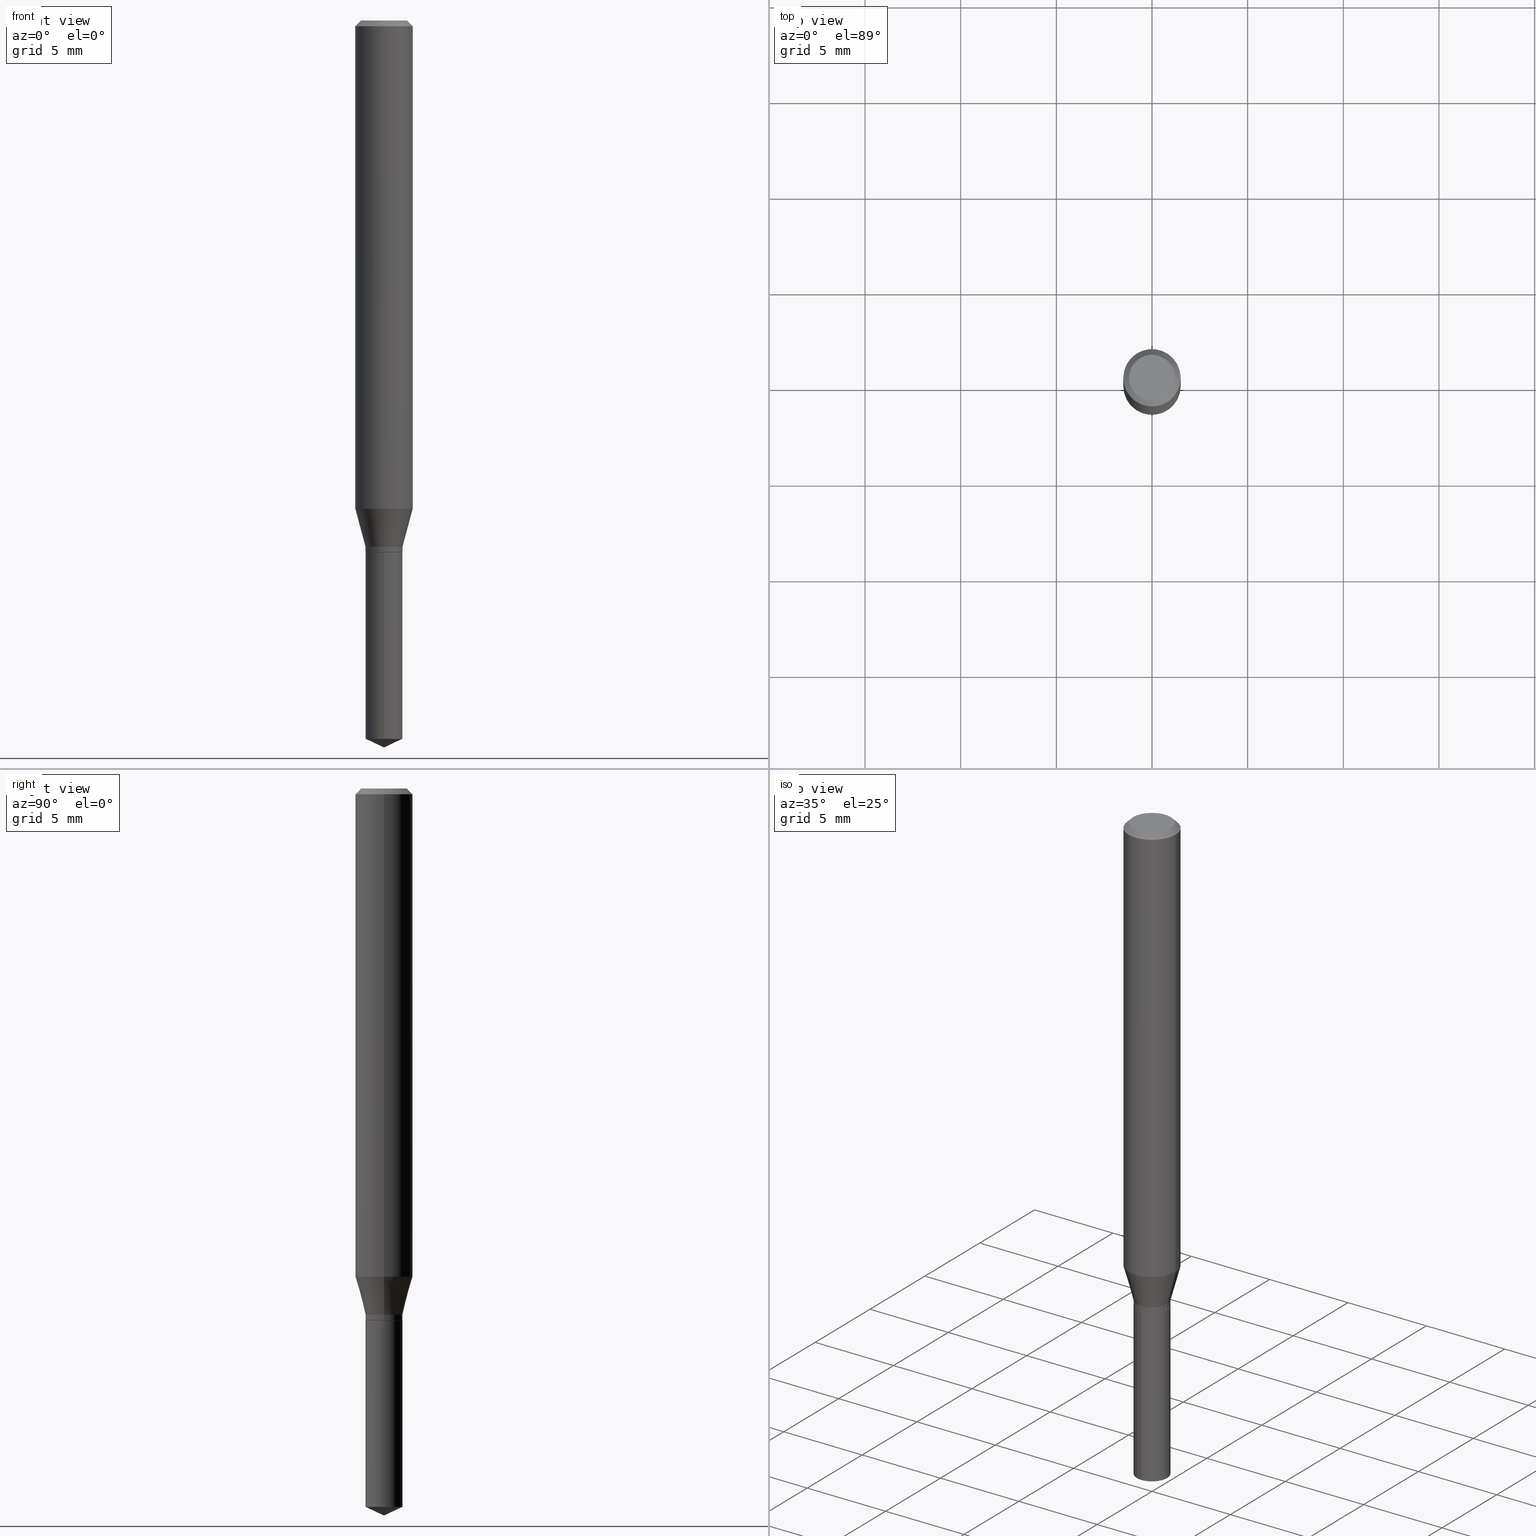
[diagram: canonical four-view strip — front | top / right | iso, engineering-drawing reading convention]
A machine part, canonical four-view strip (front | top / right | iso — engineering-drawing reading convention). The complete STEP part file that produces these views, byte-faithful:
ISO-10303-21;
HEADER;
FILE_DESCRIPTION (( 'STEP AP203' ),
    '1' );
FILE_NAME ('07592.STEP',
    '2024-04-23T23:26:49',
    ( '' ),
    ( '' ),
    'SwSTEP 2.0',
    'SolidWorks 2023',
    '' );
FILE_SCHEMA (( 'CONFIG_CONTROL_DESIGN' ));
ENDSEC;

DATA;
#1 = CARTESIAN_POINT ( 'NONE',  ( 0.03799999999999999906, -4.085033166446479279E-15, -1.093999999999999861 ) ) ;
#2 = VERTEX_POINT ( 'NONE', #51 ) ;
#3 = CARTESIAN_POINT ( 'NONE',  ( 2.676565608369632355E-29, -3.821426325363822773E-15, -1.094500000000000028 ) ) ;
#4 = FACE_OUTER_BOUND ( 'NONE', #395, .T. ) ;
#5 = ORIENTED_EDGE ( 'NONE', *, *, #91, .T. ) ;
#6 = VECTOR ( 'NONE', #107, 39.37007874015748143 ) ;
#7 = VECTOR ( 'NONE', #154, 39.37007874015748143 ) ;
#8 = CC_DESIGN_DATE_AND_TIME_ASSIGNMENT ( #370, #25, ( #190 ) ) ;
#9 = CARTESIAN_POINT ( 'NONE',  ( 8.265746106709734507E-48, -1.180129479067563789E-33, -3.380025165646692144E-19 ) ) ;
#10 = CYLINDRICAL_SURFACE ( 'NONE', #301, 0.03799999999999999906 ) ;
#11 = CARTESIAN_POINT ( 'NONE',  ( 2.675342873966538993E-29, -3.819680584694400481E-15, -1.093999999999999861 ) ) ;
#12 = EDGE_LOOP ( 'NONE', ( #243, #281, #435, #350 ) ) ;
#13 = AXIS2_PLACEMENT_3D ( 'NONE', #229, #138, #28 ) ;
#14 = CONICAL_SURFACE ( 'NONE', #144, 0.05904999999999999832, 0.7853981633974452814 ) ;
#15 = DIRECTION ( 'NONE',  ( -2.445458899330790108E-29, 3.491495526022433205E-15, 1.000000000000000000 ) ) ;
#16 = ORIENTED_EDGE ( 'NONE', *, *, #404, .T. ) ;
#17 = CYLINDRICAL_SURFACE ( 'NONE', #250, 0.03799999999999999906 ) ;
#18 = CARTESIAN_POINT ( 'NONE',  ( -9.261924752013118283E-28, 1.322368428517963298E-13, 37.87397874015748300 ) ) ;
#19 = CARTESIAN_POINT ( 'NONE',  ( 0.05905000000000011628, -3.919677764175807032E-15, -1.004540330500674816 ) ) ;
#20 = EDGE_LOOP ( 'NONE', ( #122, #153 ) ) ;
#21 = CIRCLE ( 'NONE', #398, 0.03799999999999999906 ) ;
#22 = EDGE_LOOP ( 'NONE', ( #470, #289, #172, #87 ) ) ;
#23 = COORDINATED_UNIVERSAL_TIME_OFFSET ( 5, 0, .BEHIND. ) ;
#24 = CARTESIAN_POINT ( 'NONE',  ( 2.888098660104663766E-31, -4.123439461173779647E-17, -0.01181000000000007044 ) ) ;
#25 = DATE_TIME_ROLE ( 'classification_date' ) ;
#26 = DIRECTION ( 'NONE',  ( -1.000000000000000000, 6.982962677686265922E-15, -4.876176775795935793E-29 ) ) ;
#27 = CALENDAR_DATE ( 2024, 23, 4 ) ;
#28 = DIRECTION ( 'NONE',  ( 1.000000000000000000, -6.982962677686266711E-15, 4.876185090822587894E-29 ) ) ;
#29 = CC_DESIGN_PERSON_AND_ORGANIZATION_ASSIGNMENT ( #481, #58, ( #480 ) ) ;
#30 = CARTESIAN_POINT ( 'NONE',  ( -0.05905000000000011628, -3.087758332592092225E-15, -1.004540330500674816 ) ) ;
#31 = FACE_OUTER_BOUND ( 'NONE', #22, .T. ) ;
#32 = DIRECTION ( 'NONE',  ( -2.445468806185136877E-29, 3.491481338843145188E-15, 1.000000000000000000 ) ) ;
#33 = CIRCLE ( 'NONE', #72, 0.03799999999999999906 ) ;
#34 = CIRCLE ( 'NONE', #459, 0.03799999999999999906 ) ;
#35 = DIRECTION ( 'NONE',  ( -2.445468806185136597E-29, 3.491481338843145583E-15, 1.000000000000000000 ) ) ;
#36 = CARTESIAN_POINT ( 'NONE',  ( 2.676565608369632355E-29, -3.821426325363822773E-15, -1.094500000000000028 ) ) ;
#37 = ADVANCED_FACE ( 'NONE', ( #211 ), #290, .T. ) ;
#38 = ORIENTED_EDGE ( 'NONE', *, *, #174, .F. ) ;
#39 = CARTESIAN_POINT ( 'NONE',  ( 2.700062395888742036E-16, 0.03799999999999617573, -1.094500000000000028 ) ) ;
#40 = EDGE_LOOP ( 'NONE', ( #252, #202, #423 ) ) ;
#41 = VECTOR ( 'NONE', #286, 39.37007874015748143 ) ;
#42 = FACE_OUTER_BOUND ( 'NONE', #245, .T. ) ;
#43 = ORIENTED_EDGE ( 'NONE', *, *, #447, .F. ) ;
#44 = LINE ( 'NONE', #203, #483 ) ;
#45 = ORIENTED_EDGE ( 'NONE', *, *, #311, .T. ) ;
#46 = CARTESIAN_POINT ( 'NONE',  ( 2.676565608369631794E-29, -3.821426325363822773E-15, -1.094499999999999806 ) ) ;
#47 = ORIENTED_EDGE ( 'NONE', *, *, #224, .F. ) ;
#48 = CIRCLE ( 'NONE', #264, 0.03799999999999999906 ) ;
#49 = CIRCLE ( 'NONE', #351, 0.03749999999999999167 ) ;
#50 = FACE_OUTER_BOUND ( 'NONE', #356, .T. ) ;
#51 = CARTESIAN_POINT ( 'NONE',  ( -0.03799999999999999906, -3.530645771808868176E-15, -1.093999999999999861 ) ) ;
#52 = LENGTH_MEASURE_WITH_UNIT ( LENGTH_MEASURE( 0.02539999999999999897 ), #90 );
#53 = EDGE_CURVE ( 'NONE', #391, #457, #178, .T. ) ;
#54 = VERTEX_POINT ( 'NONE', #177 ) ;
#55 = ORIENTED_EDGE ( 'NONE', *, *, #74, .T. ) ;
#56 = CIRCLE ( 'NONE', #13, 0.04724000000000000421 ) ;
#57 = AXIS2_PLACEMENT_3D ( 'NONE', #280, #345, #239 ) ;
#58 = PERSON_AND_ORGANIZATION_ROLE ( 'creator' ) ;
#59 = LOCAL_TIME ( 19, 26, 49.00000000000000000, #339 ) ;
#60 = CARTESIAN_POINT ( 'NONE',  ( 2.648687263979121750E-29, -3.781623438101010914E-15, -1.083099999999999952 ) ) ;
#61 = ADVANCED_FACE ( 'NONE', ( #104 ), #308, .T. ) ;
#62 = CARTESIAN_POINT ( 'NONE',  ( 4.132873053354867254E-48, -5.900647395337818946E-34, -1.690012582823346072E-19 ) ) ;
#63 = ADVANCED_FACE ( 'NONE', ( #31 ), #473, .T. ) ;
#64 = DIRECTION ( 'NONE',  ( 1.000000000000000000, -6.982962677686265922E-15, 4.876176775795935793E-29 ) ) ;
#65 = CIRCLE ( 'NONE', #316, 0.03799999999999999906 ) ;
#66 = CARTESIAN_POINT ( 'NONE',  ( -0.05905000000000006077, 4.195754854663395916E-16, -2.904631170795524694E-30 ) ) ;
#67 = CARTESIAN_POINT ( 'NONE',  ( 0.000000000000000000, 0.000000000000000000, 0.000000000000000000 ) ) ;
#68 = CARTESIAN_POINT ( 'NONE',  ( 3.615329126267350293E-29, -5.161742706730900890E-15, -1.478380308990109970 ) ) ;
#69 = EDGE_CURVE ( 'NONE', #92, #425, #449, .T. ) ;
#70 = CARTESIAN_POINT ( 'NONE',  ( 2.888098660104663766E-31, -4.123439461173779647E-17, -0.01181000000000007044 ) ) ;
#71 = CYLINDRICAL_SURFACE ( 'NONE', #331, 0.05905000000000006077 ) ;
#72 = AXIS2_PLACEMENT_3D ( 'NONE', #60, #218, #369 ) ;
#73 = VECTOR ( 'NONE', #364, 39.37007874015748143 ) ;
#74 = EDGE_CURVE ( 'NONE', #291, #194, #140, .T. ) ;
#75 = DIRECTION ( 'NONE',  ( 1.000000000000000000, -6.982962677686269077E-15, 0.000000000000000000 ) ) ;
#76 = ORIENTED_EDGE ( 'NONE', *, *, #485, .F. ) ;
#77 = CARTESIAN_POINT ( 'NONE',  ( -0.03749999999999999167, -3.552323572279673766E-15, -1.094500000000000028 ) ) ;
#78 = EDGE_CURVE ( 'NONE', #439, #80, #56, .T. ) ;
#79 = FACE_OUTER_BOUND ( 'NONE', #12, .T. ) ;
#80 = VERTEX_POINT ( 'NONE', #411 ) ;
#81 = CIRCLE ( 'NONE', #292, 0.05905000000000011628 ) ;
#82 = CC_DESIGN_APPROVAL ( #415, ( #190 ) ) ;
#83 = DIRECTION ( 'NONE',  ( -2.445468806185136597E-29, 3.491481338843145583E-15, 1.000000000000000000 ) ) ;
#84 = FACE_OUTER_BOUND ( 'NONE', #478, .T. ) ;
#85 = ORIENTED_EDGE ( 'NONE', *, *, #74, .F. ) ;
#86 = LINE ( 'NONE', #93, #453 ) ;
#87 = ORIENTED_EDGE ( 'NONE', *, *, #384, .F. ) ;
#88 = APPROVAL_PERSON_ORGANIZATION ( #226, #183, #133 ) ;
#89 = EDGE_CURVE ( 'NONE', #457, #391, #65, .T. ) ;
#90 =( LENGTH_UNIT ( ) NAMED_UNIT ( * ) SI_UNIT ( $, .METRE. ) );
#91 = EDGE_CURVE ( 'NONE', #439, #425, #337, .T. ) ;
#92 = VERTEX_POINT ( 'NONE', #30 ) ;
#93 = CARTESIAN_POINT ( 'NONE',  ( 0.05905000000000006077, -4.123439461173744764E-16, 2.879382386107503023E-30 ) ) ;
#94 = ORIENTED_EDGE ( 'NONE', *, *, #188, .T. ) ;
#95 = PERSON_AND_ORGANIZATION ( #230, #106 ) ;
#96 = VERTEX_POINT ( 'NONE', #413 ) ;
#97 = EDGE_CURVE ( 'NONE', #54, #291, #299, .T. ) ;
#98 = AXIS2_PLACEMENT_3D ( 'NONE', #67, #336, #298 ) ;
#99 = PERSON_AND_ORGANIZATION ( #230, #106 ) ;
#100 = CARTESIAN_POINT ( 'NONE',  ( 2.648687263979121750E-29, -3.781623438101010914E-15, -1.083099999999999952 ) ) ;
#101 = APPLICATION_PROTOCOL_DEFINITION ( 'international standard', 'config_control_design', 1994, #269 ) ;
#102 = DIRECTION ( 'NONE',  ( -2.445458899330790108E-29, 3.491495526022433205E-15, 1.000000000000000000 ) ) ;
#103 = SHAPE_DEFINITION_REPRESENTATION ( #173, #422 ) ;
#104 = FACE_OUTER_BOUND ( 'NONE', #168, .T. ) ;
#105 = PERSON_AND_ORGANIZATION_ROLE ( 'creator' ) ;
#106 = ORGANIZATION ( 'UNSPECIFIED', 'UNSPECIFIED', '' ) ;
#107 = DIRECTION ( 'NONE',  ( -2.445468806185136877E-29, 3.491481338843145188E-15, 1.000000000000000000 ) ) ;
#108 = CC_DESIGN_PERSON_AND_ORGANIZATION_ASSIGNMENT ( #450, #261, ( #480 ) ) ;
#109 = DIRECTION ( 'NONE',  ( -2.445468806185136597E-29, 3.491481338843145583E-15, 1.000000000000000000 ) ) ;
#110 = CARTESIAN_POINT ( 'NONE',  ( 2.676565608369632355E-29, -3.821426325363822773E-15, -1.094500000000000028 ) ) ;
#111 = ORIENTED_EDGE ( 'NONE', *, *, #78, .F. ) ;
#112 = EDGE_CURVE ( 'NONE', #276, #391, #372, .T. ) ;
#113 = LINE ( 'NONE', #456, #7 ) ;
#114 = CONICAL_SURFACE ( 'NONE', #407, 84.42940631927405093, 1.134464013796314674 ) ;
#115 = DIRECTION ( 'NONE',  ( 1.000000000000000000, -6.982962677686266711E-15, 0.000000000000000000 ) ) ;
#116 = MANIFOLD_SOLID_BREP ( 'Body-Move/Copy2[1]', #160 ) ;
#117 = DIRECTION ( 'NONE',  ( -2.445468806185136597E-29, 3.491481338843145583E-15, 1.000000000000000000 ) ) ;
#118 = ORIENTED_EDGE ( 'NONE', *, *, #89, .T. ) ;
#119 = DIRECTION ( 'NONE',  ( -1.000000000000000000, 6.982962677686266711E-15, 0.000000000000000000 ) ) ;
#120 = CONICAL_SURFACE ( 'NONE', #240, 0.03799999999999999906, 0.2617993877991499629 ) ;
#121 = CARTESIAN_POINT ( 'NONE',  ( 2.888098660104663766E-31, -4.123439461173779647E-17, -0.01181000000000007044 ) ) ;
#122 = ORIENTED_EDGE ( 'NONE', *, *, #399, .T. ) ;
#123 = CARTESIAN_POINT ( 'NONE',  ( 0.000000000000000000, 0.000000000000000000, 0.000000000000000000 ) ) ;
#124 = ORIENTED_EDGE ( 'NONE', *, *, #367, .T. ) ;
#125 = ADVANCED_FACE ( 'NONE', ( #484 ), #335, .F. ) ;
#126 = DIRECTION ( 'NONE',  ( -2.445468806185136597E-29, 3.491481338843145583E-15, 1.000000000000000000 ) ) ;
#127 = ORIENTED_EDGE ( 'NONE', *, *, #97, .F. ) ;
#128 = AXIS2_PLACEMENT_3D ( 'NONE', #306, #374, #227 ) ;
#129 = CIRCLE ( 'NONE', #225, 0.04724000000000000421 ) ;
#130 =( NAMED_UNIT ( * ) PLANE_ANGLE_UNIT ( ) SI_UNIT ( $, .RADIAN. ) );
#131 = ORIENTED_EDGE ( 'NONE', *, *, #205, .T. ) ;
#132 = ORIENTED_EDGE ( 'NONE', *, *, #404, .F. ) ;
#133 = APPROVAL_ROLE ( '' ) ;
#134 = DIRECTION ( 'NONE',  ( 1.000000000000000000, -6.982962677686269077E-15, 0.000000000000000000 ) ) ;
#135 = PRODUCT_DEFINITION ( 'UNKNOWN', '', #480, #371 ) ;
#136 = CIRCLE ( 'NONE', #274, 0.03799999999999999906 ) ;
#137 = APPROVAL_ROLE ( '' ) ;
#138 = DIRECTION ( 'NONE',  ( -2.445468806185136597E-29, 3.491481338843145583E-15, 1.000000000000000000 ) ) ;
#139 = DATE_AND_TIME ( #27, #442 ) ;
#140 = LINE ( 'NONE', #220, #282 ) ;
#141 = EDGE_CURVE ( 'NONE', #327, #54, #465, .T. ) ;
#142 = DIRECTION ( 'NONE',  ( 1.000000000000000000, -6.982962677686266711E-15, 0.000000000000000000 ) ) ;
#143 = CLOSED_SHELL ( 'NONE', ( #320, #199, #315, #63, #61, #342, #222, #477, #396, #125, #147, #238 ) ) ;
#144 = AXIS2_PLACEMENT_3D ( 'NONE', #70, #146, #119 ) ;
#145 = DIRECTION ( 'NONE',  ( 0.7071067811864297781, -2.468850131081024071E-15, 0.7071067811866651454 ) ) ;
#146 = DIRECTION ( 'NONE',  ( 2.445468806185136597E-29, -3.491481338843145583E-15, -1.000000000000000000 ) ) ;
#147 = ADVANCED_FACE ( 'NONE', ( #303 ), #414, .F. ) ;
#148 = EDGE_LOOP ( 'NONE', ( #249, #111, #5, #408 ) ) ;
#149 = FACE_OUTER_BOUND ( 'NONE', #334, .T. ) ;
#150 = PRODUCT ( '07592', '07592', '', ( #180 ) ) ;
#151 = DIRECTION ( 'NONE',  ( -2.445458899330790108E-29, 3.491495526022433599E-15, 1.000000000000000000 ) ) ;
#152 = AXIS2_PLACEMENT_3D ( 'NONE', #100, #109, #268 ) ;
#153 = ORIENTED_EDGE ( 'NONE', *, *, #436, .T. ) ;
#154 = DIRECTION ( 'NONE',  ( -2.445458899330790108E-29, 3.491495526022433599E-15, 1.000000000000000000 ) ) ;
#155 = ORIENTED_EDGE ( 'NONE', *, *, #384, .T. ) ;
#156 = DIMENSIONAL_EXPONENTS ( 1.000000000000000000, 0.000000000000000000, 0.000000000000000000, 0.000000000000000000, 0.000000000000000000, 0.000000000000000000, 0.000000000000000000 ) ;
#157 = DIRECTION ( 'NONE',  ( 1.000000000000000000, -6.982962677686269077E-15, 0.000000000000000000 ) ) ;
#158 = DIRECTION ( 'NONE',  ( 0.2588190451025212391, 1.565188264969622362E-15, 0.9659258262890679791 ) ) ;
#159 = APPROVAL_PERSON_ORGANIZATION ( #417, #415, #373 ) ;
#160 = CLOSED_SHELL ( 'NONE', ( #455, #379, #37, #489, #285 ) ) ;
#161 = ORIENTED_EDGE ( 'NONE', *, *, #224, .T. ) ;
#162 = DIRECTION ( 'NONE',  ( -6.982962677686265922E-15, -1.000000000000000000, 3.594536833768767206E-15 ) ) ;
#163 = EDGE_CURVE ( 'NONE', #327, #2, #223, .T. ) ;
#164 = ORIENTED_EDGE ( 'NONE', *, *, #348, .F. ) ;
#165 = DIRECTION ( 'NONE',  ( -6.982962677686265922E-15, -1.000000000000000000, 3.594536833768767206E-15 ) ) ;
#166 = VERTEX_POINT ( 'NONE', #488 ) ;
#167 = DIRECTION ( 'NONE',  ( -2.445458899330790108E-29, 3.491495526022433205E-15, 1.000000000000000000 ) ) ;
#168 = EDGE_LOOP ( 'NONE', ( #235, #313, #164, #85 ) ) ;
#169 = CONICAL_SURFACE ( 'NONE', #365, 0.03749999999999999167, 0.7853981633972818566 ) ;
#170 = CARTESIAN_POINT ( 'NONE',  ( -0.04724000000000000421, 3.504923541997677355E-16, -3.380025165670481712E-19 ) ) ;
#171 = UNCERTAINTY_MEASURE_WITH_UNIT (LENGTH_MEASURE( 1.000000000000000082E-05 ), #362, 'distance_accuracy_value', 'NONE');
#172 = ORIENTED_EDGE ( 'NONE', *, *, #304, .F. ) ;
#173 = PRODUCT_DEFINITION_SHAPE ( 'NONE', 'NONE',  #135 ) ;
#174 = EDGE_CURVE ( 'NONE', #363, #194, #33, .T. ) ;
#175 = CARTESIAN_POINT ( 'NONE',  ( 2.675342873966538993E-29, -3.819680584694400481E-15, -1.093999999999999861 ) ) ;
#176 = DATE_AND_TIME ( #255, #59 ) ;
#177 = CARTESIAN_POINT ( 'NONE',  ( 0.03749999999999999167, -4.083287425777057775E-15, -1.094500000000000028 ) ) ;
#178 = CIRCLE ( 'NONE', #195, 0.03799999999999999906 ) ;
#179 = CIRCLE ( 'NONE', #388, 0.03799999999999999906 ) ;
#180 = MECHANICAL_CONTEXT ( 'NONE', #216, 'mechanical' ) ;
#181 = CARTESIAN_POINT ( 'NONE',  ( -0.03749999999999999167, -3.554972799453785361E-15, -1.094500000000000028 ) ) ;
#182 = EDGE_CURVE ( 'NONE', #425, #166, #207, .T. ) ;
#183 = APPROVAL ( #405, 'UNSPECIFIED' ) ;
#184 = COORDINATED_UNIVERSAL_TIME_OFFSET ( 5, 0, .BEHIND. ) ;
#185 = DIRECTION ( 'NONE',  ( -0.7071067811864297781, 7.493145998869928175E-15, 0.7071067811866651454 ) ) ;
#186 = PERSON_AND_ORGANIZATION ( #230, #106 ) ;
#187 = CARTESIAN_POINT ( 'NONE',  ( -0.05904999999999999832, 3.711095515056362547E-16, -0.01181000000000007044 ) ) ;
#188 = EDGE_CURVE ( 'NONE', #2, #291, #48, .T. ) ;
#189 = AXIS2_PLACEMENT_3D ( 'NONE', #46, #15, #162 ) ;
#190 = SECURITY_CLASSIFICATION ( '', '', #217 ) ;
#191 = FACE_OUTER_BOUND ( 'NONE', #20, .T. ) ;
#192 = DIRECTION ( 'NONE',  ( 1.000000000000000000, -6.982962677686269866E-15, 0.000000000000000000 ) ) ;
#193 = DIRECTION ( 'NONE',  ( 1.000000000000000000, -6.982962677686265922E-15, 4.876176775795935793E-29 ) ) ;
#194 = VERTEX_POINT ( 'NONE', #445 ) ;
#195 = AXIS2_PLACEMENT_3D ( 'NONE', #68, #451, #262 ) ;
#196 = CARTESIAN_POINT ( 'NONE',  ( -0.03799999999999999906, -3.530645771808868176E-15, -1.083099999999999952 ) ) ;
#197 = AXIS2_PLACEMENT_3D ( 'NONE', #283, #126, #328 ) ;
#198 = EDGE_LOOP ( 'NONE', ( #403, #208, #155, #47 ) ) ;
#199 = ADVANCED_FACE ( 'NONE', ( #464 ), #14, .T. ) ;
#200 = APPROVAL ( #448, 'UNSPECIFIED' ) ;
#201 = CARTESIAN_POINT ( 'NONE',  ( -2.653525817520513354E-16, -0.03800000000000381545, -1.094499999999999806 ) ) ;
#202 = ORIENTED_EDGE ( 'NONE', *, *, #447, .T. ) ;
#203 = CARTESIAN_POINT ( 'NONE',  ( 0.03799999999999999906, -4.046976019853088923E-15, -1.083099999999999952 ) ) ;
#204 = ORIENTED_EDGE ( 'NONE', *, *, #433, .F. ) ;
#205 = EDGE_CURVE ( 'NONE', #391, #96, #312, .T. ) ;
#206 = CARTESIAN_POINT ( 'NONE',  ( 2.676565608369631794E-29, -3.821426325363822773E-15, -1.094499999999999806 ) ) ;
#207 = CIRCLE ( 'NONE', #482, 0.05904999999999999832 ) ;
#208 = ORIENTED_EDGE ( 'NONE', *, *, #174, .T. ) ;
#209 = AXIS2_PLACEMENT_3D ( 'NONE', #3, #275, #424 ) ;
#210 = DIRECTION ( 'NONE',  ( 1.000000000000000000, -6.982962677686266711E-15, 4.876176775795935793E-29 ) ) ;
#211 = FACE_OUTER_BOUND ( 'NONE', #346, .T. ) ;
#212 = FACE_OUTER_BOUND ( 'NONE', #40, .T. ) ;
#213 = ORIENTED_EDGE ( 'NONE', *, *, #399, .F. ) ;
#214 =( NAMED_UNIT ( * ) SI_UNIT ( $, .STERADIAN. ) SOLID_ANGLE_UNIT ( ) );
#215 = ORIENTED_EDGE ( 'NONE', *, *, #436, .F. ) ;
#216 = APPLICATION_CONTEXT ( 'configuration controlled 3d designs of mechanical parts and assemblies' ) ;
#217 = SECURITY_CLASSIFICATION_LEVEL ( 'unclassified' ) ;
#218 = DIRECTION ( 'NONE',  ( -2.445468806185136597E-29, 3.491481338843145583E-15, 1.000000000000000000 ) ) ;
#219 = PERSON_AND_ORGANIZATION ( #230, #106 ) ;
#220 = CARTESIAN_POINT ( 'NONE',  ( 0.03799999999999999906, -2.653525817520781074E-16, 1.852947174802455475E-30 ) ) ;
#221 = DATE_AND_TIME ( #368, #273 ) ;
#222 = ADVANCED_FACE ( 'NONE', ( #233 ), #120, .T. ) ;
#223 = LINE ( 'NONE', #181, #257 ) ;
#224 = EDGE_CURVE ( 'NONE', #92, #468, #444, .T. ) ;
#225 = AXIS2_PLACEMENT_3D ( 'NONE', #9, #426, #318 ) ;
#226 = PERSON_AND_ORGANIZATION ( #230, #106 ) ;
#227 = DIRECTION ( 'NONE',  ( 1.000000000000000000, -6.982962677686269866E-15, 0.000000000000000000 ) ) ;
#228 = DATE_AND_TIME ( #302, #309 ) ;
#229 = CARTESIAN_POINT ( 'NONE',  ( 8.265746106709734507E-48, -1.180129479067563789E-33, -3.380025165646692144E-19 ) ) ;
#230 = PERSON ( 'UNSPECIFIED', 'UNSPECIFIED', 'UNSPECIFIED', ('UNSPECIFIED'), ('UNSPECIFIED'), ('UNSPECIFIED') ) ;
#231 = LINE ( 'NONE', #461, #437 ) ;
#232 = PRODUCT_RELATED_PRODUCT_CATEGORY ( 'detail', '', ( #150 ) ) ;
#233 = FACE_OUTER_BOUND ( 'NONE', #198, .T. ) ;
#234 = DIRECTION ( 'NONE',  ( 1.000000000000000000, -6.982962677686269866E-15, 0.000000000000000000 ) ) ;
#235 = ORIENTED_EDGE ( 'NONE', *, *, #433, .T. ) ;
#236 = CARTESIAN_POINT ( 'NONE',  ( 2.648687263979121750E-29, -3.781623438101010914E-15, -1.083099999999999952 ) ) ;
#237 = ORIENTED_EDGE ( 'NONE', *, *, #91, .F. ) ;
#238 = ADVANCED_FACE ( 'NONE', ( #79 ), #169, .T. ) ;
#239 = DIRECTION ( 'NONE',  ( 6.982962677686265922E-15, 1.000000000000000000, -3.491495526022433599E-15 ) ) ;
#240 = AXIS2_PLACEMENT_3D ( 'NONE', #347, #279, #75 ) ;
#241 = ORIENTED_EDGE ( 'NONE', *, *, #260, .F. ) ;
#242 = LINE ( 'NONE', #357, #41 ) ;
#243 = ORIENTED_EDGE ( 'NONE', *, *, #163, .F. ) ;
#244 = CARTESIAN_POINT ( 'NONE',  ( -2.653525817520418691E-16, -0.03800000000000514772, -1.478380308990109970 ) ) ;
#245 = EDGE_LOOP ( 'NONE', ( #254, #432, #132, #76 ) ) ;
#246 = CC_DESIGN_PERSON_AND_ORGANIZATION_ASSIGNMENT ( #186, #296, ( #150 ) ) ;
#247 = DIRECTION ( 'NONE',  ( -2.445468806185136877E-29, 3.491481338843145188E-15, 1.000000000000000000 ) ) ;
#248 = AXIS2_PLACEMENT_3D ( 'NONE', #446, #259, #487 ) ;
#249 = ORIENTED_EDGE ( 'NONE', *, *, #367, .F. ) ;
#250 = AXIS2_PLACEMENT_3D ( 'NONE', #402, #471, #165 ) ;
#251 = CYLINDRICAL_SURFACE ( 'NONE', #466, 0.05905000000000006077 ) ;
#252 = ORIENTED_EDGE ( 'NONE', *, *, #112, .F. ) ;
#253 = DIRECTION ( 'NONE',  ( -6.982962677686265922E-15, -1.000000000000000000, 3.594536833768767206E-15 ) ) ;
#254 = ORIENTED_EDGE ( 'NONE', *, *, #304, .T. ) ;
#255 = CALENDAR_DATE ( 2024, 23, 4 ) ;
#256 = ORIENTED_EDGE ( 'NONE', *, *, #78, .T. ) ;
#257 = VECTOR ( 'NONE', #185, 39.37007874015748854 ) ;
#258 = COORDINATED_UNIVERSAL_TIME_OFFSET ( 5, 0, .BEHIND. ) ;
#259 = DIRECTION ( 'NONE',  ( -2.445468806185136597E-29, 3.491481338843145583E-15, 1.000000000000000000 ) ) ;
#260 = EDGE_CURVE ( 'NONE', #80, #439, #129, .T. ) ;
#261 = PERSON_AND_ORGANIZATION_ROLE ( 'design_supplier' ) ;
#262 = DIRECTION ( 'NONE',  ( -6.982962677686265922E-15, -1.000000000000000000, 0.000000000000000000 ) ) ;
#263 = CARTESIAN_POINT ( 'NONE',  ( 3.658651059288795076E-29, -5.223626456482161457E-15, -1.496099999999999985 ) ) ;
#264 = AXIS2_PLACEMENT_3D ( 'NONE', #175, #479, #134 ) ;
#265 =( GEOMETRIC_REPRESENTATION_CONTEXT ( 3 ) GLOBAL_UNCERTAINTY_ASSIGNED_CONTEXT ( ( #171 ) ) GLOBAL_UNIT_ASSIGNED_CONTEXT ( ( #362, #130, #214 ) ) REPRESENTATION_CONTEXT ( 'NONE', 'WORKASPACE' ) );
#266 = AXIS2_PLACEMENT_3D ( 'NONE', #419, #117, #317 ) ;
#267 = CALENDAR_DATE ( 2024, 23, 4 ) ;
#268 = DIRECTION ( 'NONE',  ( 1.000000000000000000, -6.982962677686269077E-15, 0.000000000000000000 ) ) ;
#269 = APPLICATION_CONTEXT ( 'configuration controlled 3d designs of mechanical parts and assemblies' ) ;
#270 = DIRECTION ( 'NONE',  ( 2.438088387897960049E-29, -3.491481338843145188E-15, -1.000000000000000000 ) ) ;
#271 = DIRECTION ( 'NONE',  ( -2.445468806185136597E-29, 3.491481338843145583E-15, 1.000000000000000000 ) ) ;
#272 = EDGE_LOOP ( 'NONE', ( #241, #124, #16, #237 ) ) ;
#273 = LOCAL_TIME ( 19, 26, 49.00000000000000000, #258 ) ;
#274 = AXIS2_PLACEMENT_3D ( 'NONE', #431, #167, #253 ) ;
#275 = DIRECTION ( 'NONE',  ( -2.445468806185136597E-29, 3.491481338843145583E-15, 1.000000000000000000 ) ) ;
#276 = VERTEX_POINT ( 'NONE', #386 ) ;
#277 = EDGE_CURVE ( 'NONE', #363, #92, #231, .T. ) ;
#278 = EDGE_CURVE ( 'NONE', #2, #363, #458, .T. ) ;
#279 = DIRECTION ( 'NONE',  ( -2.445468806185136597E-29, 3.491481338843145583E-15, 1.000000000000000000 ) ) ;
#280 = CARTESIAN_POINT ( 'NONE',  ( 2.676565608369631794E-29, -3.821426325363822773E-15, -1.094499999999999806 ) ) ;
#281 = ORIENTED_EDGE ( 'NONE', *, *, #141, .T. ) ;
#282 = VECTOR ( 'NONE', #418, 39.37007874015748143 ) ;
#283 = CARTESIAN_POINT ( 'NONE',  ( 2.888098660104663766E-31, -4.123439461173779647E-17, -0.01181000000000007044 ) ) ;
#284 = VECTOR ( 'NONE', #32, 39.37007874015748143 ) ;
#285 = ADVANCED_FACE ( 'NONE', ( #191 ), #321, .F. ) ;
#286 = DIRECTION ( 'NONE',  ( 6.439704144417026409E-15, 0.9063077870366516020, 0.4226182617406958331 ) ) ;
#287 = ORIENTED_EDGE ( 'NONE', *, *, #89, .F. ) ;
#288 = DIRECTION ( 'NONE',  ( -2.445468806185136597E-29, 3.491481338843145583E-15, 1.000000000000000000 ) ) ;
#289 = ORIENTED_EDGE ( 'NONE', *, *, #277, .T. ) ;
#290 = CONICAL_SURFACE ( 'NONE', #428, 84.42940631927405093, 1.134464013796314674 ) ;
#291 = VERTEX_POINT ( 'NONE', #1 ) ;
#292 = AXIS2_PLACEMENT_3D ( 'NONE', #390, #271, #115 ) ;
#293 = EDGE_CURVE ( 'NONE', #457, #359, #113, .T. ) ;
#294 = DIRECTION ( 'NONE',  ( -6.982962677686265922E-15, -1.000000000000000000, 3.594536833768767206E-15 ) ) ;
#295 = ORIENTED_EDGE ( 'NONE', *, *, #278, .F. ) ;
#296 = PERSON_AND_ORGANIZATION_ROLE ( 'design_owner' ) ;
#297 = EDGE_LOOP ( 'NONE', ( #393, #400 ) ) ;
#298 = DIRECTION ( 'NONE',  ( 1.000000000000000000, 0.000000000000000000, 0.000000000000000000 ) ) ;
#299 = LINE ( 'NONE', #490, #375 ) ;
#300 = VECTOR ( 'NONE', #343, 39.37007874015748143 ) ;
#301 = AXIS2_PLACEMENT_3D ( 'NONE', #314, #421, #193 ) ;
#302 = CALENDAR_DATE ( 2024, 23, 4 ) ;
#303 = FACE_OUTER_BOUND ( 'NONE', #297, .T. ) ;
#304 = EDGE_CURVE ( 'NONE', #468, #92, #81, .T. ) ;
#305 = APPROVAL_DATE_TIME ( #139, #415 ) ;
#306 = CARTESIAN_POINT ( 'NONE',  ( 2.676565608369632355E-29, -3.821426325363822773E-15, -1.094500000000000028 ) ) ;
#307 = MANIFOLD_SOLID_BREP ( 'Body-Move/Copy2[2]', #143 ) ;
#308 = CYLINDRICAL_SURFACE ( 'NONE', #248, 0.03799999999999999906 ) ;
#309 = LOCAL_TIME ( 19, 26, 49.00000000000000000, #23 ) ;
#310 = DIRECTION ( 'NONE',  ( -6.328713451373370956E-15, -0.9063077870366487154, 0.4226182617407022724 ) ) ;
#311 = EDGE_CURVE ( 'NONE', #54, #327, #49, .T. ) ;
#312 = LINE ( 'NONE', #201, #474 ) ;
#313 = ORIENTED_EDGE ( 'NONE', *, *, #278, .T. ) ;
#314 = CARTESIAN_POINT ( 'NONE',  ( 0.000000000000000000, 0.000000000000000000, 0.000000000000000000 ) ) ;
#315 = ADVANCED_FACE ( 'NONE', ( #42 ), #71, .T. ) ;
#316 = AXIS2_PLACEMENT_3D ( 'NONE', #378, #102, #381 ) ;
#317 = DIRECTION ( 'NONE',  ( 1.000000000000000000, -6.982962677686266711E-15, 0.000000000000000000 ) ) ;
#318 = DIRECTION ( 'NONE',  ( 1.000000000000000000, -6.982962677686266711E-15, 4.876185090822587894E-29 ) ) ;
#319 = ORIENTED_EDGE ( 'NONE', *, *, #205, .F. ) ;
#320 = ADVANCED_FACE ( 'NONE', ( #4 ), #429, .T. ) ;
#321 = PLANE ( 'NONE',  #57 ) ;
#322 = LOCAL_TIME ( 19, 26, 49.00000000000000000, #184 ) ;
#323 = DIRECTION ( 'NONE',  ( 1.000000000000000000, -6.982962677686269077E-15, 0.000000000000000000 ) ) ;
#324 = EDGE_LOOP ( 'NONE', ( #256, #438 ) ) ;
#325 = CC_DESIGN_PERSON_AND_ORGANIZATION_ASSIGNMENT ( #95, #105, ( #135 ) ) ;
#326 = CARTESIAN_POINT ( 'NONE',  ( 2.700062395888741050E-16, 0.03799999999999482958, -1.478380308990109970 ) ) ;
#327 = VERTEX_POINT ( 'NONE', #77 ) ;
#328 = DIRECTION ( 'NONE',  ( 1.000000000000000000, -6.982962677686266711E-15, 0.000000000000000000 ) ) ;
#329 = DIRECTION ( 'NONE',  ( -2.445458899330790108E-29, 3.491495526022433205E-15, 1.000000000000000000 ) ) ;
#330 = AXIS2_PLACEMENT_3D ( 'NONE', #341, #454, #64 ) ;
#331 = AXIS2_PLACEMENT_3D ( 'NONE', #385, #35, #354 ) ;
#332 = ORIENTED_EDGE ( 'NONE', *, *, #293, .T. ) ;
#333 = CARTESIAN_POINT ( 'NONE',  ( 0.05904999999999999832, -4.463468013801466955E-16, -0.01181000000000007044 ) ) ;
#334 = EDGE_LOOP ( 'NONE', ( #295, #94, #55, #38 ) ) ;
#335 = PLANE ( 'NONE',  #406 ) ;
#336 = DIRECTION ( 'NONE',  ( 0.000000000000000000, 0.000000000000000000, 1.000000000000000000 ) ) ;
#337 = LINE ( 'NONE', #187, #300 ) ;
#338 = CC_DESIGN_PERSON_AND_ORGANIZATION_ASSIGNMENT ( #219, #410, ( #190 ) ) ;
#339 = COORDINATED_UNIVERSAL_TIME_OFFSET ( 5, 0, .BEHIND. ) ;
#340 = DIRECTION ( 'NONE',  ( -2.445468806185136597E-29, 3.491481338843145583E-15, 1.000000000000000000 ) ) ;
#341 = CARTESIAN_POINT ( 'NONE',  ( -1.073159489319468421E-30, -7.808103164117872297E-15, -1.094500000000000028 ) ) ;
#342 = ADVANCED_FACE ( 'NONE', ( #149 ), #10, .T. ) ;
#343 = DIRECTION ( 'NONE',  ( -0.7071067811865453523, 2.468850131082234184E-15, -0.7071067811865496822 ) ) ;
#344 = APPROVAL_PERSON_ORGANIZATION ( #99, #200, #137 ) ;
#345 = DIRECTION ( 'NONE',  ( 2.445458899330789267E-29, -3.491495526022433599E-15, -1.000000000000000000 ) ) ;
#346 = EDGE_LOOP ( 'NONE', ( #43, #361, #287 ) ) ;
#347 = CARTESIAN_POINT ( 'NONE',  ( 2.648687263979121750E-29, -3.781623438101010914E-15, -1.083099999999999952 ) ) ;
#348 = EDGE_CURVE ( 'NONE', #194, #363, #179, .T. ) ;
#349 = DIRECTION ( 'NONE',  ( -2.445468806185136597E-29, 3.491481338843145583E-15, 1.000000000000000000 ) ) ;
#350 = ORIENTED_EDGE ( 'NONE', *, *, #188, .F. ) ;
#351 = AXIS2_PLACEMENT_3D ( 'NONE', #36, #420, #192 ) ;
#352 = LINE ( 'NONE', #333, #73 ) ;
#353 = ORIENTED_EDGE ( 'NONE', *, *, #293, .F. ) ;
#354 = DIRECTION ( 'NONE',  ( 1.000000000000000000, -6.982962677686266711E-15, 4.876176775795935793E-29 ) ) ;
#355 = DIRECTION ( 'NONE',  ( 2.445468806185136597E-29, -3.491481338843145583E-15, -1.000000000000000000 ) ) ;
#356 = EDGE_LOOP ( 'NONE', ( #353, #118, #131, #215 ) ) ;
#357 = CARTESIAN_POINT ( 'NONE',  ( 3.658672935554494692E-29, -5.223595400746700193E-15, -1.496099999999999985 ) ) ;
#358 = CONICAL_SURFACE ( 'NONE', #416, 0.05904999999999999832, 0.7853981633974452814 ) ;
#359 = VERTEX_POINT ( 'NONE', #39 ) ;
#360 = DIRECTION ( 'NONE',  ( -1.000000000000000000, 6.982962677686266711E-15, 0.000000000000000000 ) ) ;
#361 = ORIENTED_EDGE ( 'NONE', *, *, #112, .T. ) ;
#362 =( CONVERSION_BASED_UNIT ( 'INCH', #52 ) LENGTH_UNIT ( ) NAMED_UNIT ( #156 ) );
#363 = VERTEX_POINT ( 'NONE', #196 ) ;
#364 = DIRECTION ( 'NONE',  ( 0.7071067811865453523, -7.319954787623248157E-15, -0.7071067811865496822 ) ) ;
#365 = AXIS2_PLACEMENT_3D ( 'NONE', #110, #349, #234 ) ;
#366 = ORIENTED_EDGE ( 'NONE', *, *, #485, .T. ) ;
#367 = EDGE_CURVE ( 'NONE', #80, #166, #352, .T. ) ;
#368 = CALENDAR_DATE ( 2024, 23, 4 ) ;
#369 = DIRECTION ( 'NONE',  ( 1.000000000000000000, -6.982962677686269077E-15, 0.000000000000000000 ) ) ;
#370 = DATE_AND_TIME ( #267, #322 ) ;
#371 = DESIGN_CONTEXT ( 'detailed design', #269, 'design' ) ;
#372 = LINE ( 'NONE', #263, #452 ) ;
#373 = APPROVAL_ROLE ( '' ) ;
#374 = DIRECTION ( 'NONE',  ( -2.445468806185136597E-29, 3.491481338843145583E-15, 1.000000000000000000 ) ) ;
#375 = VECTOR ( 'NONE', #145, 39.37007874015748854 ) ;
#376 = CC_DESIGN_APPROVAL ( #183, ( #135 ) ) ;
#377 = APPROVAL_DATE_TIME ( #221, #200 ) ;
#378 = CARTESIAN_POINT ( 'NONE',  ( 3.615329126267350293E-29, -5.161742706730900890E-15, -1.478380308990109970 ) ) ;
#379 = ADVANCED_FACE ( 'NONE', ( #212 ), #114, .T. ) ;
#380 = APPLICATION_PROTOCOL_DEFINITION ( 'international standard', 'config_control_design', 1994, #216 ) ;
#381 = DIRECTION ( 'NONE',  ( -6.982962677686265922E-15, -1.000000000000000000, 0.000000000000000000 ) ) ;
#382 = CARTESIAN_POINT ( 'NONE',  ( -0.03799999999999999906, 2.700062395888380639E-16, -1.869195334296863998E-30 ) ) ;
#383 = CIRCLE ( 'NONE', #197, 0.05904999999999999832 ) ;
#384 = EDGE_CURVE ( 'NONE', #194, #468, #44, .T. ) ;
#385 = CARTESIAN_POINT ( 'NONE',  ( 0.000000000000000000, 0.000000000000000000, 0.000000000000000000 ) ) ;
#386 = CARTESIAN_POINT ( 'NONE',  ( 3.658651059288794515E-29, -5.223626456482161457E-15, -1.496099999999999985 ) ) ;
#387 = DIRECTION ( 'NONE',  ( -2.445468806185136597E-29, 3.491481338843145583E-15, 1.000000000000000000 ) ) ;
#388 = AXIS2_PLACEMENT_3D ( 'NONE', #236, #387, #157 ) ;
#389 = CC_DESIGN_SECURITY_CLASSIFICATION ( #190, ( #480 ) ) ;
#390 = CARTESIAN_POINT ( 'NONE',  ( 2.456572042794307838E-29, -3.507333818058432112E-15, -1.004540330500674816 ) ) ;
#391 = VERTEX_POINT ( 'NONE', #244 ) ;
#392 = DIRECTION ( 'NONE',  ( -2.445458899330790108E-29, 3.491495526022433205E-15, 1.000000000000000000 ) ) ;
#393 = ORIENTED_EDGE ( 'NONE', *, *, #311, .F. ) ;
#394 = CYLINDRICAL_SURFACE ( 'NONE', #189, 0.03799999999999999906 ) ;
#395 = EDGE_LOOP ( 'NONE', ( #45, #475, #204, #127 ) ) ;
#396 = ADVANCED_FACE ( 'NONE', ( #430 ), #358, .T. ) ;
#397 = CARTESIAN_POINT ( 'NONE',  ( -0.05904999999999999832, -1.354708620868744441E-15, -0.01181000000000007044 ) ) ;
#398 = AXIS2_PLACEMENT_3D ( 'NONE', #206, #467, #294 ) ;
#399 = EDGE_CURVE ( 'NONE', #96, #359, #136, .T. ) ;
#400 = ORIENTED_EDGE ( 'NONE', *, *, #141, .F. ) ;
#401 = ORIENTED_EDGE ( 'NONE', *, *, #182, .F. ) ;
#402 = CARTESIAN_POINT ( 'NONE',  ( 2.676565608369631794E-29, -3.821426325363822773E-15, -1.094499999999999806 ) ) ;
#403 = ORIENTED_EDGE ( 'NONE', *, *, #277, .F. ) ;
#404 = EDGE_CURVE ( 'NONE', #166, #425, #383, .T. ) ;
#405 = APPROVAL_STATUS ( 'not_yet_approved' ) ;
#406 = AXIS2_PLACEMENT_3D ( 'NONE', #62, #270, #26 ) ;
#407 = AXIS2_PLACEMENT_3D ( 'NONE', #476, #392, #434 ) ;
#408 = ORIENTED_EDGE ( 'NONE', *, *, #182, .T. ) ;
#409 = CC_DESIGN_DATE_AND_TIME_ASSIGNMENT ( #176, #443, ( #135 ) ) ;
#410 = PERSON_AND_ORGANIZATION_ROLE ( 'classification_officer' ) ;
#411 = CARTESIAN_POINT ( 'NONE',  ( 0.04724000000000000421, -3.852183633974369345E-16, -3.380025165621689721E-19 ) ) ;
#412 = APPROVAL_STATUS ( 'not_yet_approved' ) ;
#413 = CARTESIAN_POINT ( 'NONE',  ( -2.653525817520513354E-16, -0.03800000000000381545, -1.094499999999999806 ) ) ;
#414 = PLANE ( 'NONE',  #330 ) ;
#415 = APPROVAL ( #412, 'UNSPECIFIED' ) ;
#416 = AXIS2_PLACEMENT_3D ( 'NONE', #121, #355, #360 ) ;
#417 = PERSON_AND_ORGANIZATION ( #230, #106 ) ;
#418 = DIRECTION ( 'NONE',  ( -2.445468806185136877E-29, 3.491481338843145188E-15, 1.000000000000000000 ) ) ;
#419 = CARTESIAN_POINT ( 'NONE',  ( 2.456572042794307838E-29, -3.507333818058432112E-15, -1.004540330500674816 ) ) ;
#420 = DIRECTION ( 'NONE',  ( -2.445468806185136597E-29, 3.491481338843145583E-15, 1.000000000000000000 ) ) ;
#421 = DIRECTION ( 'NONE',  ( -2.445468806185136597E-29, 3.491481338843145583E-15, 1.000000000000000000 ) ) ;
#422 = ADVANCED_BREP_SHAPE_REPRESENTATION ( '07592', ( #116, #307, #98 ), #265 ) ;
#423 = ORIENTED_EDGE ( 'NONE', *, *, #53, .F. ) ;
#424 = DIRECTION ( 'NONE',  ( 1.000000000000000000, -6.982962677686269866E-15, 0.000000000000000000 ) ) ;
#425 = VERTEX_POINT ( 'NONE', #397 ) ;
#426 = DIRECTION ( 'NONE',  ( -2.445468806185136597E-29, 3.491481338843145583E-15, 1.000000000000000000 ) ) ;
#427 = ORIENTED_EDGE ( 'NONE', *, *, #53, .T. ) ;
#428 = AXIS2_PLACEMENT_3D ( 'NONE', #18, #329, #472 ) ;
#429 = CONICAL_SURFACE ( 'NONE', #209, 0.03749999999999999167, 0.7853981633972818566 ) ;
#430 = FACE_OUTER_BOUND ( 'NONE', #148, .T. ) ;
#431 = CARTESIAN_POINT ( 'NONE',  ( 2.676565608369631794E-29, -3.821426325363822773E-15, -1.094499999999999806 ) ) ;
#432 = ORIENTED_EDGE ( 'NONE', *, *, #69, .T. ) ;
#433 = EDGE_CURVE ( 'NONE', #291, #2, #34, .T. ) ;
#434 = DIRECTION ( 'NONE',  ( -6.982962677686267499E-15, -1.000000000000000000, 3.520397390770465703E-15 ) ) ;
#435 = ORIENTED_EDGE ( 'NONE', *, *, #97, .T. ) ;
#436 = EDGE_CURVE ( 'NONE', #359, #96, #21, .T. ) ;
#437 = VECTOR ( 'NONE', #462, 39.37007874015748854 ) ;
#438 = ORIENTED_EDGE ( 'NONE', *, *, #260, .T. ) ;
#439 = VERTEX_POINT ( 'NONE', #170 ) ;
#440 = APPROVAL_DATE_TIME ( #228, #183 ) ;
#441 = EDGE_LOOP ( 'NONE', ( #463, #161, #366, #401 ) ) ;
#442 = LOCAL_TIME ( 19, 26, 49.00000000000000000, #486 ) ;
#443 = DATE_TIME_ROLE ( 'creation_date' ) ;
#444 = CIRCLE ( 'NONE', #266, 0.05905000000000011628 ) ;
#445 = CARTESIAN_POINT ( 'NONE',  ( 0.03799999999999999906, -4.046976019853088923E-15, -1.083099999999999952 ) ) ;
#446 = CARTESIAN_POINT ( 'NONE',  ( 0.000000000000000000, 0.000000000000000000, 0.000000000000000000 ) ) ;
#447 = EDGE_CURVE ( 'NONE', #276, #457, #242, .T. ) ;
#448 = APPROVAL_STATUS ( 'not_yet_approved' ) ;
#449 = LINE ( 'NONE', #66, #6 ) ;
#450 = PERSON_AND_ORGANIZATION ( #230, #106 ) ;
#451 = DIRECTION ( 'NONE',  ( -2.445458899330790108E-29, 3.491495526022433205E-15, 1.000000000000000000 ) ) ;
#452 = VECTOR ( 'NONE', #310, 39.37007874015748143 ) ;
#453 = VECTOR ( 'NONE', #247, 39.37007874015748143 ) ;
#454 = DIRECTION ( 'NONE',  ( -2.438088387897960049E-29, 3.491481338843145188E-15, 1.000000000000000000 ) ) ;
#455 = ADVANCED_FACE ( 'NONE', ( #84 ), #394, .T. ) ;
#456 = CARTESIAN_POINT ( 'NONE',  ( 2.700062395888647866E-16, 0.03799999999999617573, -1.094500000000000028 ) ) ;
#457 = VERTEX_POINT ( 'NONE', #326 ) ;
#458 = LINE ( 'NONE', #382, #284 ) ;
#459 = AXIS2_PLACEMENT_3D ( 'NONE', #11, #83, #323 ) ;
#460 = CC_DESIGN_APPROVAL ( #200, ( #480 ) ) ;
#461 = CARTESIAN_POINT ( 'NONE',  ( -0.03799999999999999906, -3.511617198512172998E-15, -1.083099999999999952 ) ) ;
#462 = DIRECTION ( 'NONE',  ( -0.2588190451025212391, 5.211531920934549464E-15, 0.9659258262890679791 ) ) ;
#463 = ORIENTED_EDGE ( 'NONE', *, *, #69, .F. ) ;
#464 = FACE_OUTER_BOUND ( 'NONE', #272, .T. ) ;
#465 = CIRCLE ( 'NONE', #128, 0.03749999999999999167 ) ;
#466 = AXIS2_PLACEMENT_3D ( 'NONE', #123, #288, #210 ) ;
#467 = DIRECTION ( 'NONE',  ( -2.445458899330790108E-29, 3.491495526022433205E-15, 1.000000000000000000 ) ) ;
#468 = VERTEX_POINT ( 'NONE', #19 ) ;
#469 = FACE_OUTER_BOUND ( 'NONE', #441, .T. ) ;
#470 = ORIENTED_EDGE ( 'NONE', *, *, #348, .T. ) ;
#471 = DIRECTION ( 'NONE',  ( -2.445458899330790108E-29, 3.491495526022433205E-15, 1.000000000000000000 ) ) ;
#472 = DIRECTION ( 'NONE',  ( -6.982962677686267499E-15, -1.000000000000000000, 3.520397390770465703E-15 ) ) ;
#473 = CONICAL_SURFACE ( 'NONE', #152, 0.03799999999999999906, 0.2617993877991499629 ) ;
#474 = VECTOR ( 'NONE', #151, 39.37007874015748143 ) ;
#475 = ORIENTED_EDGE ( 'NONE', *, *, #163, .T. ) ;
#476 = CARTESIAN_POINT ( 'NONE',  ( -9.261924752013118283E-28, 1.322368428517963298E-13, 37.87397874015748300 ) ) ;
#477 = ADVANCED_FACE ( 'NONE', ( #469 ), #251, .T. ) ;
#478 = EDGE_LOOP ( 'NONE', ( #427, #332, #213, #319 ) ) ;
#479 = DIRECTION ( 'NONE',  ( -2.445468806185136597E-29, 3.491481338843145583E-15, 1.000000000000000000 ) ) ;
#480 = PRODUCT_DEFINITION_FORMATION_WITH_SPECIFIED_SOURCE ( 'ANY', '', #150, .NOT_KNOWN. ) ;
#481 = PERSON_AND_ORGANIZATION ( #230, #106 ) ;
#482 = AXIS2_PLACEMENT_3D ( 'NONE', #24, #340, #142 ) ;
#483 = VECTOR ( 'NONE', #158, 39.37007874015748854 ) ;
#484 = FACE_OUTER_BOUND ( 'NONE', #324, .T. ) ;
#485 = EDGE_CURVE ( 'NONE', #468, #166, #86, .T. ) ;
#486 = COORDINATED_UNIVERSAL_TIME_OFFSET ( 5, 0, .BEHIND. ) ;
#487 = DIRECTION ( 'NONE',  ( 1.000000000000000000, -6.982962677686265922E-15, 4.876176775795935793E-29 ) ) ;
#488 = CARTESIAN_POINT ( 'NONE',  ( 0.05904999999999999832, -4.535783407291118600E-16, -0.01181000000000007044 ) ) ;
#489 = ADVANCED_FACE ( 'NONE', ( #50 ), #17, .T. ) ;
#490 = CARTESIAN_POINT ( 'NONE',  ( 0.03749999999999999167, -4.083287425777057775E-15, -1.094500000000000028 ) ) ;
ENDSEC;
END-ISO-10303-21;
